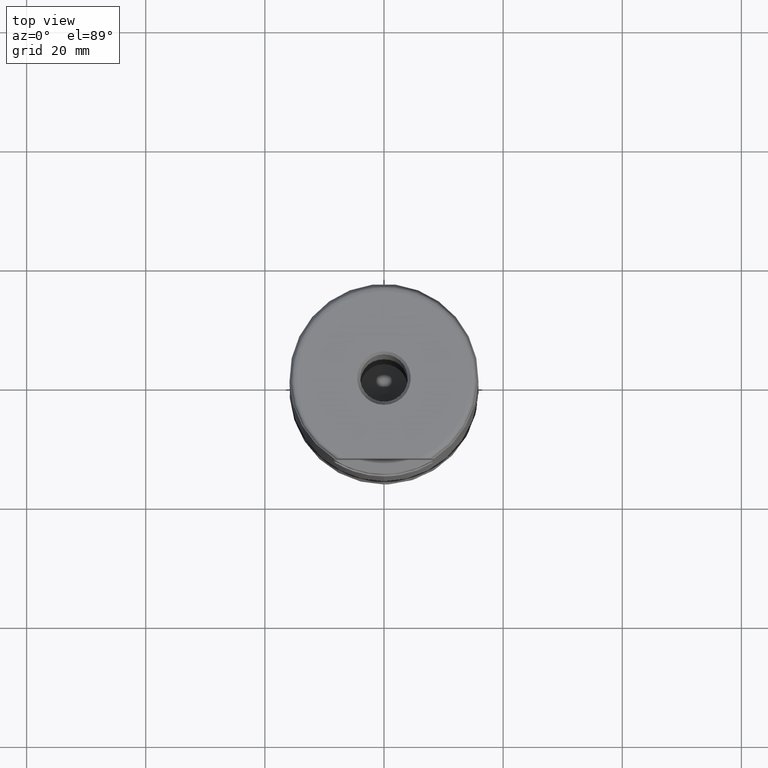
[diagram: clean part render]
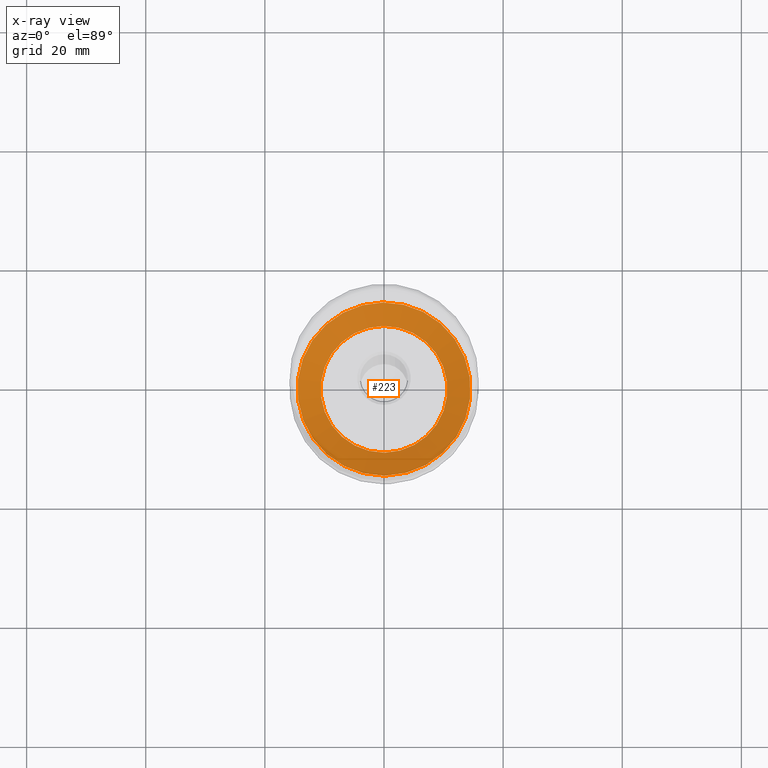
[diagram: x-ray — body ghosted, one internal face saturated and labeled with its STEP entity id]
A machine part, top view, then the same camera in x-ray: the body is ghosted and one INTERNAL B-rep face — a face not visible from any outside direction — is saturated and labeled: STEP entity #223.
In plain terms, the highlighted face is a SurfaceOfRevolution surface.
Its self-contained STEP definition (entity closure, byte-faithful):
#114=SURFACE_OF_REVOLUTION('',#799,#135);
#135=AXIS1_PLACEMENT('',#1548,#1033);
#223=ADVANCED_FACE('',(#339,#340),#114,.F.);
#273=CIRCLE('',#871,14.5373369329055);
#274=CIRCLE('',#872,10.6420247849051);
#339=FACE_BOUND('',#429,.T.);
#340=FACE_BOUND('',#430,.T.);
#429=EDGE_LOOP('',(#606));
#430=EDGE_LOOP('',(#607));
#606=ORIENTED_EDGE('',*,*,#749,.T.);
#607=ORIENTED_EDGE('',*,*,#750,.F.);
#681=VERTEX_POINT('',#1521);
#682=VERTEX_POINT('',#1535);
#749=EDGE_CURVE('',#681,#681,#273,.T.);
#750=EDGE_CURVE('',#682,#682,#274,.T.);
#799=B_SPLINE_CURVE_WITH_KNOTS('',3,(#1536,#1537,#1538,#1539,#1540,#1541,
#1542,#1543,#1544,#1545,#1546,#1547),.UNSPECIFIED.,.F.,.F.,(4,1,1,1,1,1,
1,1,1,4),(0.,0.221418157861957,0.365983083750147,0.510548009638337,0.655112935526527,
0.799677861414718,0.871960324358813,0.90810155583086,0.944242787302908,
1.),.UNSPECIFIED.);
#871=AXIS2_PLACEMENT_3D('',#1520,#1028,#1029);
#872=AXIS2_PLACEMENT_3D('',#1534,#1031,#1032);
#1028=DIRECTION('',(0.,1.17145536458252E-15,1.));
#1029=DIRECTION('',(0.,-1.,1.19328834709075E-15));
#1031=DIRECTION('',(0.,1.17145536458252E-15,1.));
#1032=DIRECTION('',(0.,-1.,1.1410483039902E-15));
#1033=DIRECTION('',(0.,1.17145536458252E-15,1.));
#1520=CARTESIAN_POINT('',(0.,8.56752907264484E-15,7.31357705267591));
#1521=CARTESIAN_POINT('',(0.,-14.5373369329055,7.31357705267593));
#1534=CARTESIAN_POINT('',(0.,6.04188013640101E-15,5.15758459013432));
#1535=CARTESIAN_POINT('',(0.,-10.6420247849051,5.15758459013433));
#1536=CARTESIAN_POINT('',(10.6008125652069,-0.935664336582891,5.15758488701206));
#1537=CARTESIAN_POINT('',(10.8832600560514,-0.934899882970591,5.32729661187756));
#1538=CARTESIAN_POINT('',(11.352046430096,-0.934204854082357,5.6046109545743));
#1539=CARTESIAN_POINT('',(12.0121400652313,-0.935102041096716,5.9808361392813));
#1540=CARTESIAN_POINT('',(12.5770987413792,-0.937178871461724,6.29288902407682));
#1541=CARTESIAN_POINT('',(13.1456681081808,-0.940403193327161,6.59831496829404));
#1542=CARTESIAN_POINT('',(13.6211034366027,-0.943530517952568,6.84978117007267));
#1543=CARTESIAN_POINT('',(13.9544307605655,-0.946164212227024,7.02481928709789));
#1544=CARTESIAN_POINT('',(14.1450573252212,-0.947216236692904,7.12450532422349));
#1545=CARTESIAN_POINT('',(14.3141725996713,-0.949861971997271,7.21265894267934));
#1546=CARTESIAN_POINT('',(14.4347719418756,-0.934883640300702,7.27549485881508));
#1547=CARTESIAN_POINT('',(14.5078860875948,-0.9248818141753,7.31357705267591));
#1548=CARTESIAN_POINT('',(0.,0.,0.));